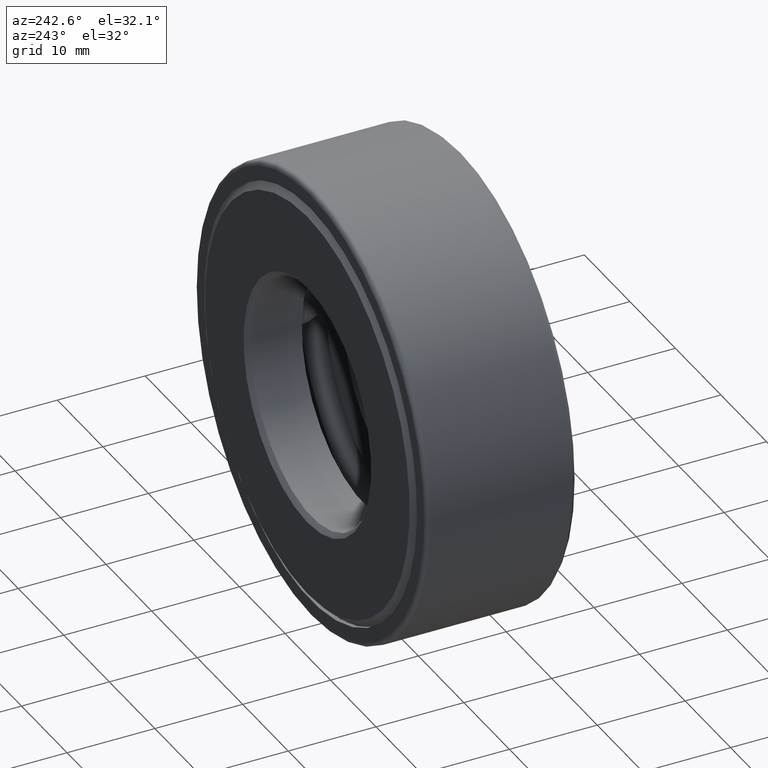
[diagram: clean part render]
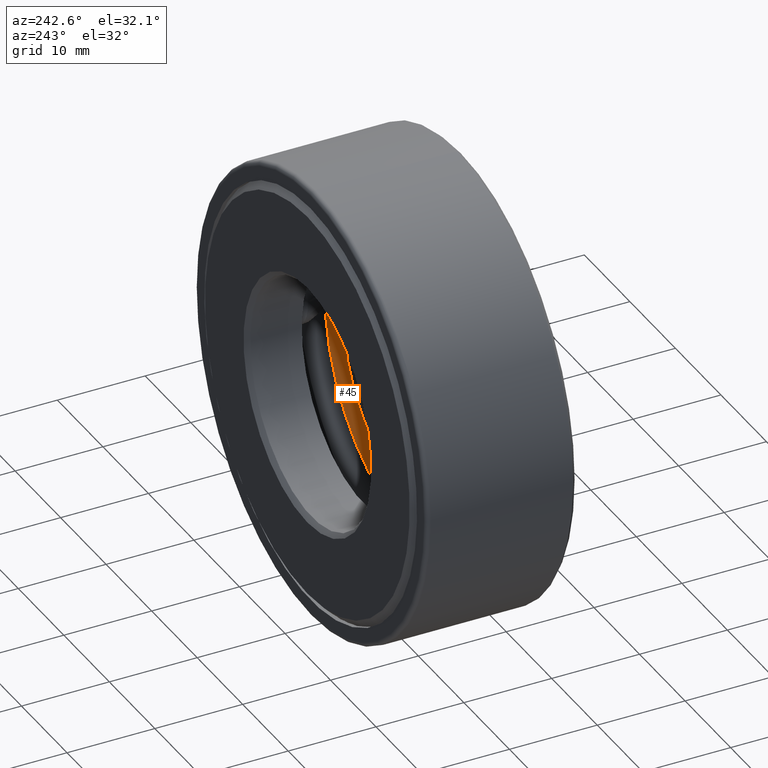
[diagram: same view with one face highlighted and labeled with its STEP entity id]
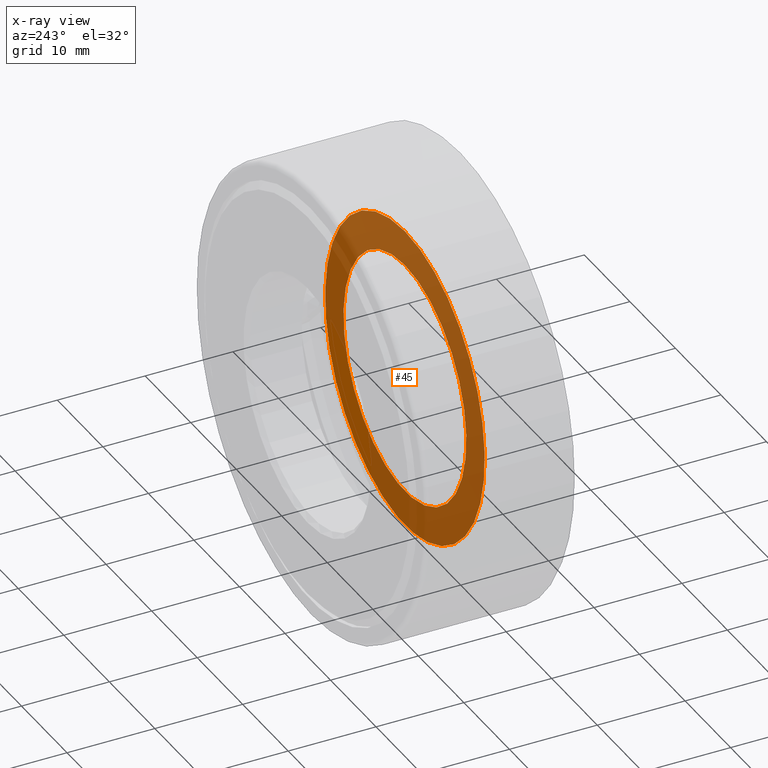
[diagram: x-ray of the same camera — body ghosted, the highlighted face saturated]
A machine part, auxiliary view. The second image highlights one B-rep face of the part: STEP entity #45.
The next image is the same camera in x-ray: the body ghosted, the highlighted face saturated — about 86% of this face is hidden behind the body in this view.
In plain terms, the highlighted planar face has unit normal (0, -1, 0).
Its self-contained STEP definition (entity closure, byte-faithful):
#13 = VERTEX_POINT ( 'NONE', #533 ) ;
#33 = EDGE_LOOP ( 'NONE', ( #211 ) ) ;
#45 = ADVANCED_FACE ( 'NONE', ( #472, #385 ), #370, .F. ) ;
#49 = AXIS2_PLACEMENT_3D ( 'NONE', #151, #251, #64 ) ;
#64 = DIRECTION ( 'NONE',  ( 0.0000000000000000000, 0.0000000000000000000, 1.000000000000000000 ) ) ;
#71 = ORIENTED_EDGE ( 'NONE', *, *, #146, .F. ) ;
#79 = DIRECTION ( 'NONE',  ( 0.0000000000000000000, -1.000000000000000000, 0.0000000000000000000 ) ) ;
#119 = EDGE_LOOP ( 'NONE', ( #71 ) ) ;
#133 = DIRECTION ( 'NONE',  ( 0.0000000000000000000, -0.0000000000000000000, -1.000000000000000000 ) ) ;
#145 = CIRCLE ( 'NONE', #49, 0.6897499999999997500 ) ;
#146 = EDGE_CURVE ( 'NONE', #382, #382, #505, .T. ) ;
#151 = CARTESIAN_POINT ( 'NONE',  ( 0.0000000000000000000, 0.2499999999999999700, 0.0000000000000000000 ) ) ;
#179 = CARTESIAN_POINT ( 'NONE',  ( 0.0000000000000000000, 0.2500000000000000000, 0.0000000000000000000 ) ) ;
#186 = CARTESIAN_POINT ( 'NONE',  ( -5.386135634196113100E-017, 0.2500000000000000000, 0.0000000000000000000 ) ) ;
#211 = ORIENTED_EDGE ( 'NONE', *, *, #559, .T. ) ;
#251 = DIRECTION ( 'NONE',  ( -0.0000000000000000000, 1.000000000000000000, -0.0000000000000000000 ) ) ;
#284 = DIRECTION ( 'NONE',  ( 0.0000000000000000000, 0.0000000000000000000, 1.000000000000000000 ) ) ;
#370 = PLANE ( 'NONE',  #444 ) ;
#382 = VERTEX_POINT ( 'NONE', #398 ) ;
#385 = FACE_OUTER_BOUND ( 'NONE', #33, .T. ) ;
#398 = CARTESIAN_POINT ( 'NONE',  ( 0.0000000000000000000, 0.2500000000000000000, 0.5312500000000000000 ) ) ;
#408 = DIRECTION ( 'NONE',  ( -0.0000000000000000000, 1.000000000000000000, -0.0000000000000000000 ) ) ;
#444 = AXIS2_PLACEMENT_3D ( 'NONE', #186, #79, #133 ) ;
#472 = FACE_BOUND ( 'NONE', #119, .T. ) ;
#477 = AXIS2_PLACEMENT_3D ( 'NONE', #179, #408, #284 ) ;
#505 = CIRCLE ( 'NONE', #477, 0.5312500000000000000 ) ;
#533 = CARTESIAN_POINT ( 'NONE',  ( 0.0000000000000000000, 0.2499999999999999700, 0.6897499999999997500 ) ) ;
#559 = EDGE_CURVE ( 'NONE', #13, #13, #145, .T. ) ;